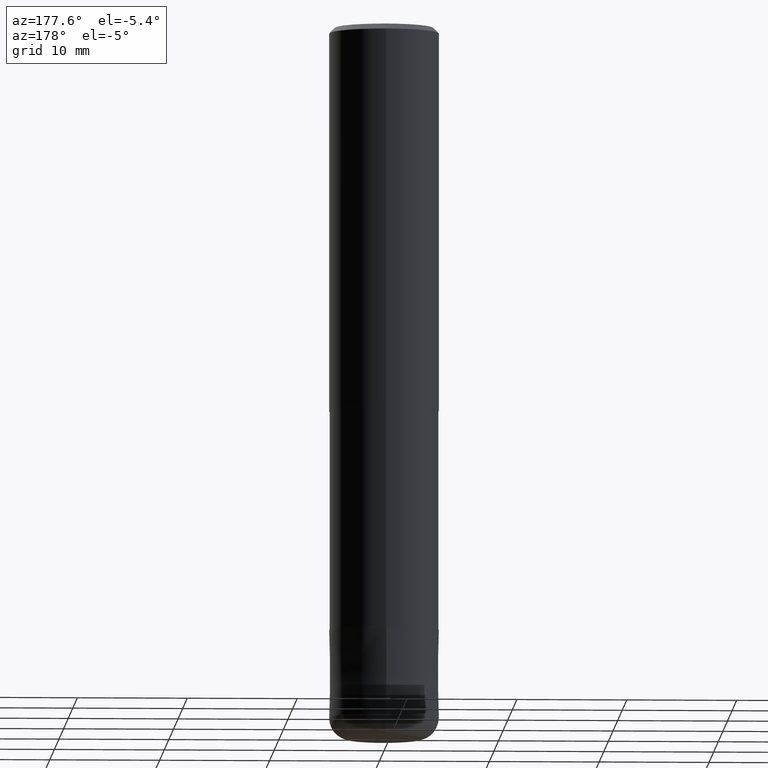
[diagram: clean part render]
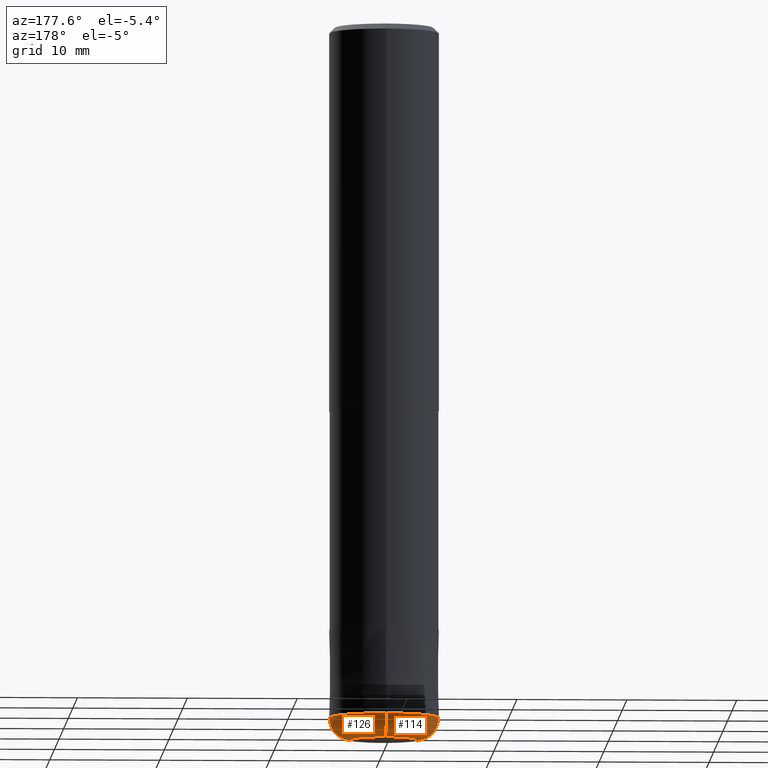
[diagram: same view with one multi-face feature highlighted, each face labeled with its STEP entity id]
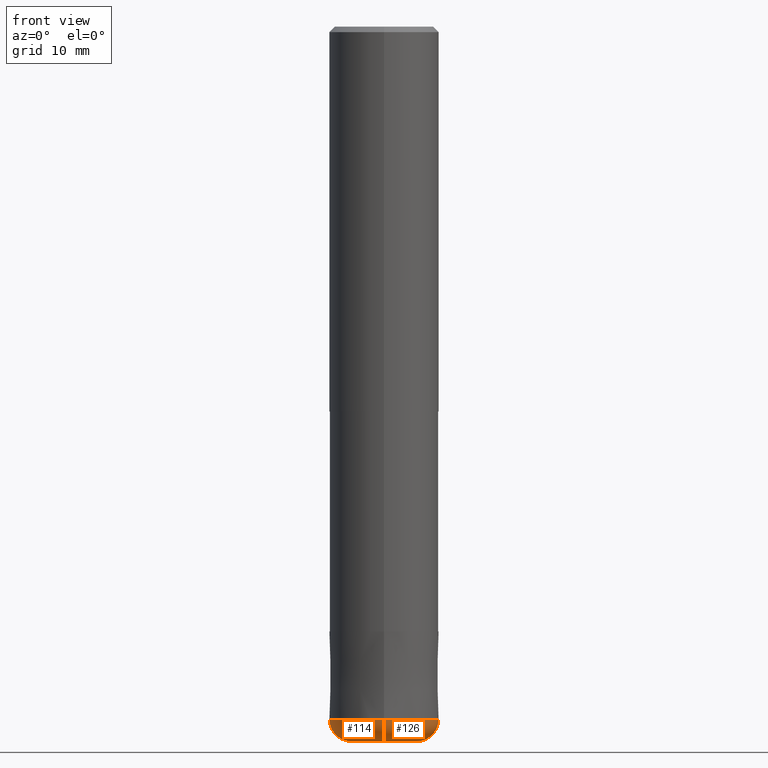
[diagram: same view with one multi-face feature highlighted, each face labeled with its STEP entity id]
A machine part, auxiliary view. The highlighted faces form ONE feature: a constant-radius fillet chain: 2 tangent blend faces with common blend radius 2 mm. The faces share edges in the B-rep.
A second angle (front view) of the same feature is appended — it is thin or edge-on in the first view.
Their STEP definitions:
[1] entity #126 (Torus):
#126=ADVANCED_FACE('',(#269),#270,.T.);
#132=VERTEX_POINT('',#276);
#148=VERTEX_POINT('',#294);
#160=EDGE_CURVE('',#206,#190,#306,.T.);
#166=EDGE_CURVE('',#132,#190,#312,.T.);
#168=EDGE_CURVE('',#148,#132,#314,.T.);
#190=VERTEX_POINT('',#341);
#204=EDGE_CURVE('',#206,#148,#357,.T.);
#206=VERTEX_POINT('',#359);
#269=FACE_OUTER_BOUND('',#423,.T.);
#270=TOROIDAL_SURFACE('',#424,3.0,2.0);
#276=CARTESIAN_POINT('',(6.12303176911189E-016,-5.0,-63.0));
#294=CARTESIAN_POINT('',(0.0,5.0,-63.0));
#306=CIRCLE('',#468,3.0);
#312=CIRCLE('',#477,2.0);
#314=CIRCLE('',#480,5.0);
#341=CARTESIAN_POINT('',(3.67381906146713E-016,-3.0,-65.0));
#357=CIRCLE('',#534,2.0);
#359=CARTESIAN_POINT('',(0.0,3.0,-65.0));
#423=EDGE_LOOP('',(#607,#608,#609,#610));
#424=AXIS2_PLACEMENT_3D('',#611,#612,#613);
#468=AXIS2_PLACEMENT_3D('',#642,#643,#644);
#477=AXIS2_PLACEMENT_3D('',#646,#647,#648);
#480=AXIS2_PLACEMENT_3D('',#649,#650,#651);
#534=AXIS2_PLACEMENT_3D('',#713,#714,#715);
#607=ORIENTED_EDGE('',*,*,#166,.T.);
#608=ORIENTED_EDGE('',*,*,#160,.F.);
#609=ORIENTED_EDGE('',*,*,#204,.T.);
#610=ORIENTED_EDGE('',*,*,#168,.T.);
#611=CARTESIAN_POINT('',(0.0,0.0,-63.0));
#612=DIRECTION('',(0.0,0.0,-1.0));
#613=DIRECTION('',(0.0,-1.0,0.0));
#642=CARTESIAN_POINT('',(0.0,0.0,-65.0));
#643=DIRECTION('',(0.0,0.0,-1.0));
#644=DIRECTION('',(0.0,1.0,0.0));
#646=CARTESIAN_POINT('',(3.67381906146713E-016,-3.0,-63.0));
#647=DIRECTION('',(1.0,1.22460635382238E-016,0.0));
#648=DIRECTION('',(1.22460635382238E-016,-1.0,-0.0));
#649=CARTESIAN_POINT('',(0.0,0.0,-63.0));
#650=DIRECTION('',(0.0,0.0,-1.0));
#651=DIRECTION('',(0.0,1.0,0.0));
#713=CARTESIAN_POINT('',(-3.67381906146713E-016,3.0,-63.0));
#714=DIRECTION('',(1.0,1.22460635382238E-016,0.0));
#715=DIRECTION('',(-1.22460635382238E-016,1.0,0.0));
[2] entity #114 (Torus):
#96=EDGE_CURVE('',#190,#206,#233,.T.);
#114=ADVANCED_FACE('',(#255),#256,.T.);
#132=VERTEX_POINT('',#276);
#148=VERTEX_POINT('',#294);
#166=EDGE_CURVE('',#132,#190,#312,.T.);
#170=EDGE_CURVE('',#132,#148,#316,.T.);
#190=VERTEX_POINT('',#341);
#204=EDGE_CURVE('',#206,#148,#357,.T.);
#206=VERTEX_POINT('',#359);
#233=CIRCLE('',#381,3.0);
#255=FACE_OUTER_BOUND('',#407,.T.);
#256=TOROIDAL_SURFACE('',#408,3.0,2.0);
#276=CARTESIAN_POINT('',(6.12303176911189E-016,-5.0,-63.0));
#294=CARTESIAN_POINT('',(0.0,5.0,-63.0));
#312=CIRCLE('',#477,2.0);
#316=CIRCLE('',#483,5.0);
#341=CARTESIAN_POINT('',(3.67381906146713E-016,-3.0,-65.0));
#357=CIRCLE('',#534,2.0);
#359=CARTESIAN_POINT('',(0.0,3.0,-65.0));
#381=AXIS2_PLACEMENT_3D('',#546,#547,#548);
#407=EDGE_LOOP('',(#585,#586,#587,#588));
#408=AXIS2_PLACEMENT_3D('',#589,#590,#591);
#477=AXIS2_PLACEMENT_3D('',#646,#647,#648);
#483=AXIS2_PLACEMENT_3D('',#652,#653,#654);
#534=AXIS2_PLACEMENT_3D('',#713,#714,#715);
#546=CARTESIAN_POINT('',(0.0,0.0,-65.0));
#547=DIRECTION('',(0.0,0.0,-1.0));
#548=DIRECTION('',(0.0,1.0,0.0));
#585=ORIENTED_EDGE('',*,*,#166,.F.);
#586=ORIENTED_EDGE('',*,*,#170,.T.);
#587=ORIENTED_EDGE('',*,*,#204,.F.);
#588=ORIENTED_EDGE('',*,*,#96,.F.);
#589=CARTESIAN_POINT('',(0.0,0.0,-63.0));
#590=DIRECTION('',(0.0,0.0,-1.0));
#591=DIRECTION('',(0.0,-1.0,0.0));
#646=CARTESIAN_POINT('',(3.67381906146713E-016,-3.0,-63.0));
#647=DIRECTION('',(1.0,1.22460635382238E-016,0.0));
#648=DIRECTION('',(1.22460635382238E-016,-1.0,-0.0));
#652=CARTESIAN_POINT('',(0.0,0.0,-63.0));
#653=DIRECTION('',(0.0,0.0,-1.0));
#654=DIRECTION('',(0.0,1.0,0.0));
#713=CARTESIAN_POINT('',(-3.67381906146713E-016,3.0,-63.0));
#714=DIRECTION('',(1.0,1.22460635382238E-016,0.0));
#715=DIRECTION('',(-1.22460635382238E-016,1.0,0.0));